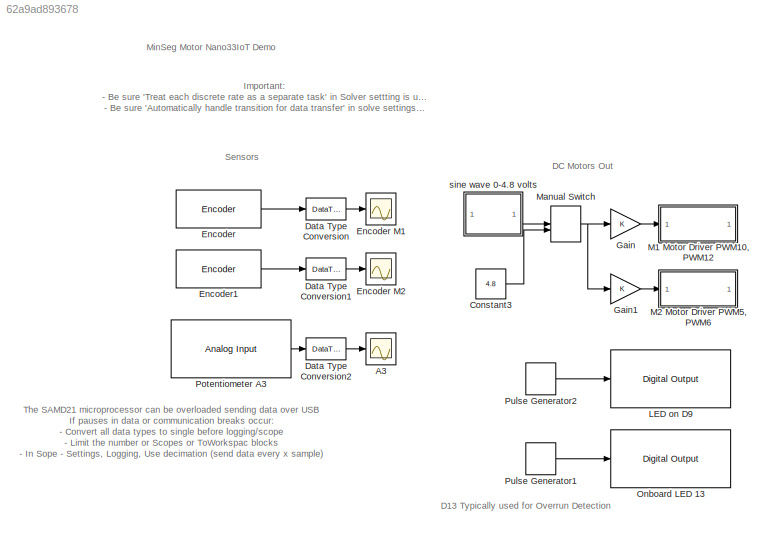
MODEL slx_62a9ad893678
KIND model
CONFIG AbsTol = auto
CONFIG EnableMultiTasking = on
CONFIG FixedStep = auto
CONFIG MaxStep = auto
CONFIG MinStep = auto
CONFIG RelTol = 1e-3
CONFIG SampleTimeConstraint = Unconstrained
CONFIG SolverName = ode45
CONFIG StartTime = 0.0
CONFIG StopTime = 10.0
BLOCK [Scope] A3
  ActiveDisplayYMaximum = 4606.875
  ActiveDisplayYMinimum = -511.87499999999989
  ContainerLayout = {"WindowBounds":[1686,125,636,887],"gridDimensions":{"w":1,"h":3},"tileCount":3,"tileCoverage":[1,2,3],"columnWeights":1,"rowWeights":[0.33333333333333331,0.33333333333333331,0.33333333333333331],"tileOccupancy":[{"children":{"id":"/Encoder M1"}},{"children":{"id":"/Encoder M2"}},{"children":{"id":"/A3"}}]}  <repeated x3 — deduplicated; at blocks: A3, Encoder M1, Encoder M2>
  Floating = off
  GraphicalSettings = {"Style":{"BackgroundColor":[0.12941176470588237,0.12941176470588237,0.12941176470588237],"AxesColor":[0.07058823529411765,0.07058823529411765,0.07058823529411765],"LabelsColor":[0.8509803921568627,0.8509803921568627,0.8509803921568627],"PreserveColors":false,"Visible":[true,true,true,true,true,true,true],"LineStyle":["-","-","-","-","-","-","-"],"LineWidth":[1.5,1.5,1.5,1.5,1.5,1.5,1.5],"BarWidth...<+2565ch>
  MultipleDisplayCache = [{"MaxYLimMag":4606.875,"MaxYLimReal":4606.875,"MinYLimMag":0,"MinYLimReal":-511.87499999999989,"PlotAsMagnitudePhase":false,"ShowGrid":true,"ShowLegend":false,"Title":"%<SignalLabel>","YLabel":""}]
  NumInputPorts = 1
  ScopeFrameLocation = container
  TimeSpan = 30
  Visible = on
  WasSavedAsWebScope = on
  WindowPosition = [1694.000000,436.000000,621.000000,850.000000,]
BLOCK [Constant] Constant3
  Value = 4.8
BLOCK [DataTypeConversion] Data Type Conversion
  OutDataTypeStr = single
  RndMeth = Floor
  SaturateOnIntegerOverflow = off
BLOCK [DataTypeConversion] Data Type Conversion1
  OutDataTypeStr = single
  RndMeth = Floor
  SaturateOnIntegerOverflow = off
BLOCK [DataTypeConversion] Data Type Conversion2
  OutDataTypeStr = single
  RndMeth = Floor
  SaturateOnIntegerOverflow = off
BLOCK [Reference] Encoder  REF=arduinosensorlib/Encoder
  SourceBlock = arduinosensorlib/Encoder
  SourceType = Arduino Rotary Encoder
BLOCK [Scope] Encoder M1
  ActiveDisplayYMaximum = 39720.375
  ActiveDisplayYMinimum = -9113.375
  DataLoggingVariableName = ScopeData2
  Floating = off
  GraphicalSettings = {"Style":{"BackgroundColor":[0.12941176470588237,0.12941176470588237,0.12941176470588237],"AxesColor":[0.07058823529411765,0.07058823529411765,0.07058823529411765],"LabelsColor":[0.8509803921568627,0.8509803921568627,0.8509803921568627],"PreserveColors":false,"Visible":[true,true,true,true,true,true,true],"LineStyle":["-","-","-","-","-","-","-"],"LineWidth":[1.5,1.5,1.5,1.5,1.5,1.5,1.5],"BarWidth...<+2534ch>
  MultipleDisplayCache = [{"MaxYLimMag":10,"MaxYLimReal":39720.375,"MinYLimMag":0,"MinYLimReal":-9113.375,"PlotAsMagnitudePhase":false,"ShowGrid":true,"ShowLegend":false,"Title":"%<SignalLabel>","YLabel":""}]
  NumInputPorts = 1
  ScopeFrameLocation = container
  TimeSpan = 30
  TimeSpanOverrunAction = Scroll
  Visible = on
  WasSavedAsWebScope = on
  WindowPosition = [1694.000000,436.000000,621.000000,850.000000,]
BLOCK [Scope] Encoder M2
  ActiveDisplayYMaximum = 1
  ActiveDisplayYMinimum = -1
  DataLoggingVariableName = ScopeData1
  Floating = off
  GraphicalSettings = {"Style":{"BackgroundColor":[0.12941176470588237,0.12941176470588237,0.12941176470588237],"AxesColor":[0.07058823529411765,0.07058823529411765,0.07058823529411765],"LabelsColor":[0.8509803921568627,0.8509803921568627,0.8509803921568627],"PreserveColors":false,"Visible":[true,true,true,true,true,true,true],"LineStyle":["-","-","-","-","-","-","-"],"LineWidth":[1.5,1.5,1.5,1.5,1.5,1.5,1.5],"BarWidth...<+2506ch>
  MultipleDisplayCache = [{"MaxYLimMag":10,"MaxYLimReal":1,"MinYLimMag":0,"MinYLimReal":-1,"PlotAsMagnitudePhase":false,"ShowGrid":true,"ShowLegend":false,"Title":"%<SignalLabel>","YLabel":""}]
  NumInputPorts = 1
  ScopeFrameLocation = container
  TimeSpan = 30
  TimeSpanOverrunAction = Scroll
  Visible = on
  WasSavedAsWebScope = on
  WindowPosition = [1694.000000,436.000000,621.000000,850.000000,]
BLOCK [Reference] Encoder1  REF=arduinosensorlib/Encoder
  SourceBlock = arduinosensorlib/Encoder
  SourceType = Arduino Rotary Encoder
BLOCK [Gain] Gain
BLOCK [Gain] Gain1
BLOCK [Reference] LED on D9  REF=arduinolib/Digital Output
  SourceBlock = arduinolib/Digital Output
  SourceType = Arduino Digital Output
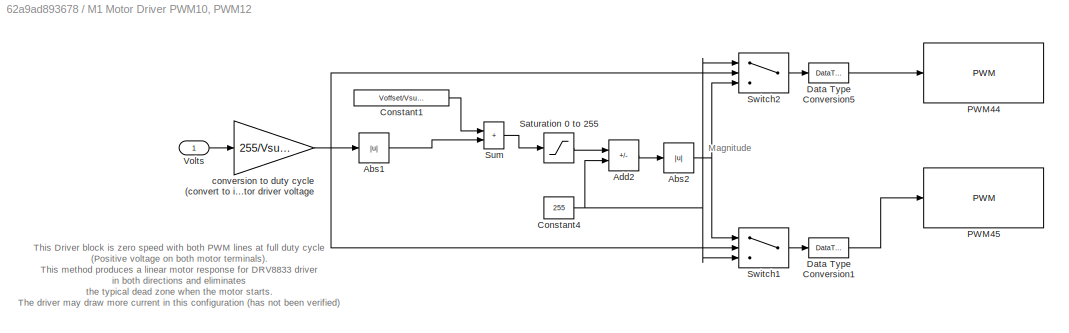
BLOCK [SubSystem] M1 Motor Driver PWM10, PWM12
BLOCK [Abs] M1 Motor Driver PWM10, PWM12/Abs1
  SaturateOnIntegerOverflow = off
BLOCK [Abs] M1 Motor Driver PWM10, PWM12/Abs2
  SaturateOnIntegerOverflow = off
BLOCK [Sum] M1 Motor Driver PWM10, PWM12/Add2
  IconShape = rectangular
  Inputs = -+
BLOCK [Constant] M1 Motor Driver PWM10, PWM12/Constant1
  Value = Voffset/Vsupply*255
BLOCK [Constant] M1 Motor Driver PWM10, PWM12/Constant4
  Value = 255
BLOCK [DataTypeConversion] M1 Motor Driver PWM10, PWM12/Data Type Conversion1
  OutDataTypeStr = uint8
  RndMeth = Floor
  SaturateOnIntegerOverflow = off
BLOCK [DataTypeConversion] M1 Motor Driver PWM10, PWM12/Data Type Conversion5
  OutDataTypeStr = uint8
  RndMeth = Floor
  SaturateOnIntegerOverflow = off
BLOCK [Reference] M1 Motor Driver PWM10, PWM12/PWM44  REF=arduinolib/PWM
  SourceBlock = arduinolib/PWM
  SourceType = Arduino PWM
BLOCK [Reference] M1 Motor Driver PWM10, PWM12/PWM45  REF=arduinolib/PWM
  SourceBlock = arduinolib/PWM
  SourceType = Arduino PWM
BLOCK [Saturate] M1 Motor Driver PWM10, PWM12/Saturation 0 to 255
  LowerLimit = 0
  UpperLimit = 255
BLOCK [Sum] M1 Motor Driver PWM10, PWM12/Sum
  IconShape = rectangular
BLOCK [Switch] M1 Motor Driver PWM10, PWM12/Switch1
  InputSameDT = off
  SaturateOnIntegerOverflow = off
BLOCK [Switch] M1 Motor Driver PWM10, PWM12/Switch2
  InputSameDT = off
  SaturateOnIntegerOverflow = off
BLOCK [Inport] M1 Motor Driver PWM10, PWM12/Volts
BLOCK [Gain] M1 Motor Driver PWM10, PWM12/conversion to duty cycle (convert to int) denominator is motor driver voltage
  Gain = 255/Vsupply
  OutDataTypeStr = int16
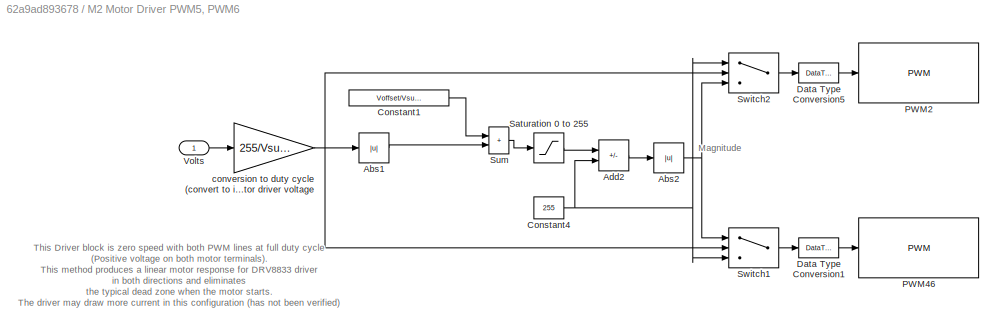
BLOCK [SubSystem] M2 Motor Driver PWM5, PWM6
BLOCK [Abs] M2 Motor Driver PWM5, PWM6/Abs1
  SaturateOnIntegerOverflow = off
BLOCK [Abs] M2 Motor Driver PWM5, PWM6/Abs2
  SaturateOnIntegerOverflow = off
BLOCK [Sum] M2 Motor Driver PWM5, PWM6/Add2
  IconShape = rectangular
  Inputs = -+
BLOCK [Constant] M2 Motor Driver PWM5, PWM6/Constant1
  Value = Voffset/Vsupply*255
BLOCK [Constant] M2 Motor Driver PWM5, PWM6/Constant4
  Value = 255
BLOCK [DataTypeConversion] M2 Motor Driver PWM5, PWM6/Data Type Conversion1
  OutDataTypeStr = uint8
  RndMeth = Floor
  SaturateOnIntegerOverflow = off
BLOCK [DataTypeConversion] M2 Motor Driver PWM5, PWM6/Data Type Conversion5
  OutDataTypeStr = uint8
  RndMeth = Floor
  SaturateOnIntegerOverflow = off
BLOCK [Reference] M2 Motor Driver PWM5, PWM6/PWM2  REF=arduinolib/PWM
  SourceBlock = arduinolib/PWM
  SourceType = Arduino PWM
BLOCK [Reference] M2 Motor Driver PWM5, PWM6/PWM46  REF=arduinolib/PWM
  SourceBlock = arduinolib/PWM
  SourceType = Arduino PWM
BLOCK [Saturate] M2 Motor Driver PWM5, PWM6/Saturation 0 to 255
  LowerLimit = 0
  UpperLimit = 255
BLOCK [Sum] M2 Motor Driver PWM5, PWM6/Sum
  IconShape = rectangular
BLOCK [Switch] M2 Motor Driver PWM5, PWM6/Switch1
  InputSameDT = off
  SaturateOnIntegerOverflow = off
BLOCK [Switch] M2 Motor Driver PWM5, PWM6/Switch2
  InputSameDT = off
  SaturateOnIntegerOverflow = off
BLOCK [Inport] M2 Motor Driver PWM5, PWM6/Volts
BLOCK [Gain] M2 Motor Driver PWM5, PWM6/conversion to duty cycle (convert to int) denominator is motor driver voltage
  Gain = 255/Vsupply
  OutDataTypeStr = int16
BLOCK [ManualSwitch] Manual Switch
BLOCK [Reference] Onboard LED 13  REF=arduinolib/Digital Output
  Commented = on
  SourceBlock = arduinolib/Digital Output
  SourceType = Arduino Digital Output
BLOCK [Reference] Potentiometer A3  REF=arduinolib/Analog Input
  SourceBlock = arduinolib/Analog Input
  SourceType = Arduino Analog Input
BLOCK [DiscretePulseGenerator] Pulse Generator1
  Commented = on
  Period = 1
  PulseType = Time based
  PulseWidth = 50
BLOCK [DiscretePulseGenerator] Pulse Generator2
  Period = 1
  PulseType = Time based
  PulseWidth = 50
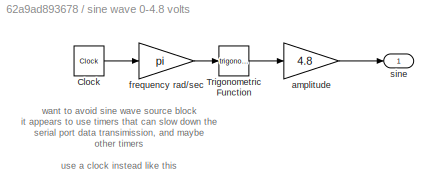
BLOCK [SubSystem] sine wave 0-4.8 volts
BLOCK [Clock] sine wave 0-4.8 volts/Clock
BLOCK [Trigonometry] sine wave 0-4.8 volts/Trigonometric Function
BLOCK [Gain] sine wave 0-4.8 volts/amplitude
  Gain = 4.8
BLOCK [Gain] sine wave 0-4.8 volts/frequency rad//sec
  Gain = pi
BLOCK [Outport] sine wave 0-4.8 volts/sine
ANNOTATION (root): Important: - Be sure 'Treat each discrete rate as a separate task' in Solver settting is unchecked - Be sure 'Automatically handle transition for data transfer' in solve settings is unchecked
ANNOTATION (root): D13 Typically used for Overrun Detection
ANNOTATION (root): DC Motors Out
ANNOTATION (root): MinSeg Motor Nano33IoT Demo
ANNOTATION (root): Sensors
ANNOTATION (root): The SAMD21 microprocessor can be overloaded sending data over USB If pauses in data or communication breaks occur: - Convert all data types to single before logging/scope - Limit the number or Scopes or ToWorkspac blocks - In Sope - Settings, Logging, Use decimation (send data every x sample)
ANNOTATION M1 Motor Driver PWM10, PWM12: Magnitude
ANNOTATION M1 Motor Driver PWM10, PWM12: This Driver block is zero speed with both PWM lines at full duty cycle (Positive voltage on both motor terminals). This method produces a linear motor response for DRV8833 driver in both directions and eliminates the typical dead zone when the motor starts. The driver may draw more current in this configuration (has not been verified) The SN754410 driver this has no effect, so the driver could alt...<+76ch>
ANNOTATION M2 Motor Driver PWM5, PWM6: Magnitude
ANNOTATION M2 Motor Driver PWM5, PWM6: This Driver block is zero speed with both PWM lines at full duty cycle (Positive voltage on both motor terminals). This method produces a linear motor response for DRV8833 driver in both directions and eliminates the typical dead zone when the motor starts. The driver may draw more current in this configuration (has not been verified) The SN754410 driver this has no effect, so the driver could alt...<+76ch>
ANNOTATION sine wave 0-4.8 volts: want to avoid sine wave source block it appears to use timers that can slow down the serial port data transimission, and maybe other timers use a clock instead like this
LINE Constant3:1 -> Manual Switch:2
LINE Data Type Conversion1:1 -> Encoder M2:1
LINE Data Type Conversion2:1 -> A3:1
LINE Data Type Conversion:1 -> Encoder M1:1
LINE Encoder1:1 -> Data Type Conversion1:1
LINE Encoder:1 -> Data Type Conversion:1
LINE Gain1:1 -> M2 Motor Driver PWM5, PWM6:1
LINE Gain:1 -> M1 Motor Driver PWM10, PWM12:1
LINE M1 Motor Driver PWM10, PWM12/Abs1:1 -> M1 Motor Driver PWM10, PWM12/Sum:2
NET M1 Motor Driver PWM10, PWM12/Abs2:1 -> M1 Motor Driver PWM10, PWM12/Switch1:1, M1 Motor Driver PWM10, PWM12/Switch2:3
LINE M1 Motor Driver PWM10, PWM12/Add2:1 -> M1 Motor Driver PWM10, PWM12/Abs2:1
LINE M1 Motor Driver PWM10, PWM12/Constant1:1 -> M1 Motor Driver PWM10, PWM12/Sum:1
NET M1 Motor Driver PWM10, PWM12/Constant4:1 -> M1 Motor Driver PWM10, PWM12/Add2:2, M1 Motor Driver PWM10, PWM12/Switch1:3, M1 Motor Driver PWM10, PWM12/Switch2:1
LINE M1 Motor Driver PWM10, PWM12/Data Type Conversion1:1 -> M1 Motor Driver PWM10, PWM12/PWM45:1
LINE M1 Motor Driver PWM10, PWM12/Data Type Conversion5:1 -> M1 Motor Driver PWM10, PWM12/PWM44:1
LINE M1 Motor Driver PWM10, PWM12/Saturation 0 to 255:1 -> M1 Motor Driver PWM10, PWM12/Add2:1
LINE M1 Motor Driver PWM10, PWM12/Sum:1 -> M1 Motor Driver PWM10, PWM12/Saturation 0 to 255:1
LINE M1 Motor Driver PWM10, PWM12/Switch1:1 -> M1 Motor Driver PWM10, PWM12/Data Type Conversion1:1
LINE M1 Motor Driver PWM10, PWM12/Switch2:1 -> M1 Motor Driver PWM10, PWM12/Data Type Conversion5:1
LINE M1 Motor Driver PWM10, PWM12/Volts:1 -> M1 Motor Driver PWM10, PWM12/conversion to duty cycle (convert to int) denominator is motor driver voltage:1
NET M1 Motor Driver PWM10, PWM12/conversion to duty cycle (convert to int) denominator is motor driver voltage:1 -> M1 Motor Driver PWM10, PWM12/Abs1:1, M1 Motor Driver PWM10, PWM12/Switch1:2, M1 Motor Driver PWM10, PWM12/Switch2:2
LINE M2 Motor Driver PWM5, PWM6/Abs1:1 -> M2 Motor Driver PWM5, PWM6/Sum:2
NET M2 Motor Driver PWM5, PWM6/Abs2:1 -> M2 Motor Driver PWM5, PWM6/Switch1:1, M2 Motor Driver PWM5, PWM6/Switch2:3
LINE M2 Motor Driver PWM5, PWM6/Add2:1 -> M2 Motor Driver PWM5, PWM6/Abs2:1
LINE M2 Motor Driver PWM5, PWM6/Constant1:1 -> M2 Motor Driver PWM5, PWM6/Sum:1
NET M2 Motor Driver PWM5, PWM6/Constant4:1 -> M2 Motor Driver PWM5, PWM6/Add2:2, M2 Motor Driver PWM5, PWM6/Switch1:3, M2 Motor Driver PWM5, PWM6/Switch2:1
LINE M2 Motor Driver PWM5, PWM6/Data Type Conversion1:1 -> M2 Motor Driver PWM5, PWM6/PWM46:1
LINE M2 Motor Driver PWM5, PWM6/Data Type Conversion5:1 -> M2 Motor Driver PWM5, PWM6/PWM2:1
LINE M2 Motor Driver PWM5, PWM6/Saturation 0 to 255:1 -> M2 Motor Driver PWM5, PWM6/Add2:1
LINE M2 Motor Driver PWM5, PWM6/Sum:1 -> M2 Motor Driver PWM5, PWM6/Saturation 0 to 255:1
LINE M2 Motor Driver PWM5, PWM6/Switch1:1 -> M2 Motor Driver PWM5, PWM6/Data Type Conversion1:1
LINE M2 Motor Driver PWM5, PWM6/Switch2:1 -> M2 Motor Driver PWM5, PWM6/Data Type Conversion5:1
LINE M2 Motor Driver PWM5, PWM6/Volts:1 -> M2 Motor Driver PWM5, PWM6/conversion to duty cycle (convert to int) denominator is motor driver voltage:1
NET M2 Motor Driver PWM5, PWM6/conversion to duty cycle (convert to int) denominator is motor driver voltage:1 -> M2 Motor Driver PWM5, PWM6/Abs1:1, M2 Motor Driver PWM5, PWM6/Switch1:2, M2 Motor Driver PWM5, PWM6/Switch2:2
NET Manual Switch:1 -> Gain1:1, Gain:1
LINE Potentiometer A3:1 -> Data Type Conversion2:1
LINE Pulse Generator1:1 -> Onboard LED 13:1
LINE Pulse Generator2:1 -> LED on D9:1
LINE sine wave 0-4.8 volts/Clock:1 -> sine wave 0-4.8 volts/frequency rad//sec:1
LINE sine wave 0-4.8 volts/Trigonometric Function:1 -> sine wave 0-4.8 volts/amplitude:1
LINE sine wave 0-4.8 volts/amplitude:1 -> sine wave 0-4.8 volts/sine:1
LINE sine wave 0-4.8 volts/frequency rad//sec:1 -> sine wave 0-4.8 volts/Trigonometric Function:1
LINE sine wave 0-4.8 volts:1 -> Manual Switch:1
note: NET lines group one-source signal fan-out (src -> all destinations, sorted); 1:1 wires keep LINE
